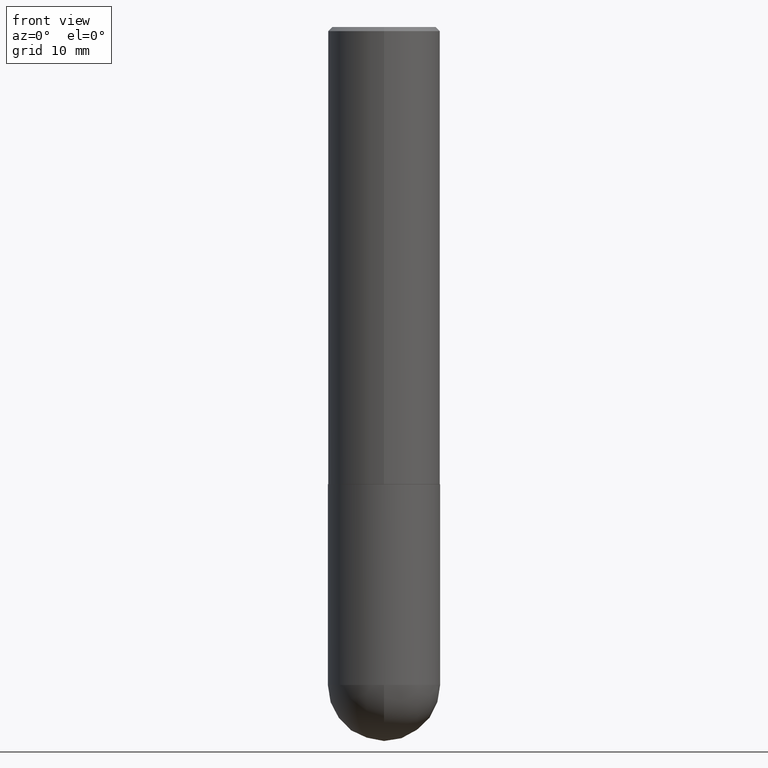
[diagram: clean part render]
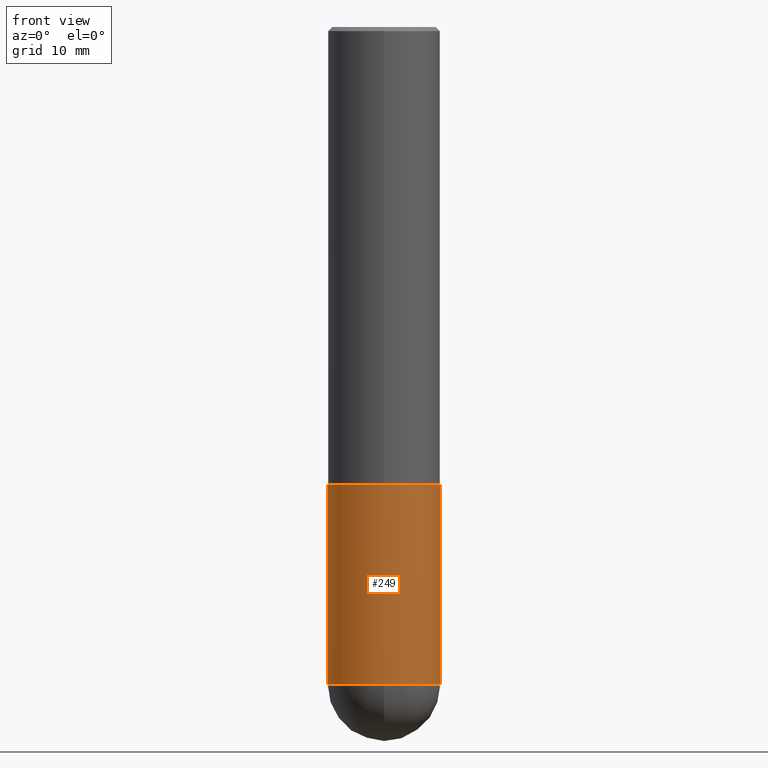
[diagram: same view with one face highlighted and labeled with its STEP entity id]
A machine part, front view. The second image highlights one B-rep face of the part: STEP entity #249.
In plain terms, the highlighted cylindrical surface (partial cylindrical patch) has radius 7.0002 mm, axis along (-0, 0, 1).
Its self-contained STEP definition (entity closure, byte-faithful):
#19 = CARTESIAN_POINT ( 'NONE',  ( 7.894706947007475996E-29, -1.127154920618732565E-14, -3.228299999999999503 ) ) ;
#27 = LINE ( 'NONE', #93, #403 ) ;
#37 = EDGE_CURVE ( 'NONE', #257, #88, #27, .T. ) ;
#39 = CARTESIAN_POINT ( 'NONE',  ( -1.958255779754759675E-15, -0.2756000000000117245, -3.228299999999998615 ) ) ;
#42 = FACE_OUTER_BOUND ( 'NONE', #388, .T. ) ;
#51 = ORIENTED_EDGE ( 'NONE', *, *, #37, .T. ) ;
#52 = VECTOR ( 'NONE', #374, 39.37007874015748143 ) ;
#61 = LINE ( 'NONE', #251, #52 ) ;
#62 = AXIS2_PLACEMENT_3D ( 'NONE', #321, #201, #269 ) ;
#65 = ORIENTED_EDGE ( 'NONE', *, *, #390, .T. ) ;
#66 = VERTEX_POINT ( 'NONE', #317 ) ;
#88 = VERTEX_POINT ( 'NONE', #382 ) ;
#93 = CARTESIAN_POINT ( 'NONE',  ( 0.2756000000000000671, -1.924504513970335743E-15, 1.343874319409360268E-29 ) ) ;
#102 = AXIS2_PLACEMENT_3D ( 'NONE', #19, #270, #296 ) ;
#136 = EDGE_CURVE ( 'NONE', #66, #88, #361, .T. ) ;
#144 = CIRCLE ( 'NONE', #172, 0.2756000000000000671 ) ;
#151 = DIRECTION ( 'NONE',  ( 1.000000000000000000, -6.982962677686265922E-15, 0.000000000000000000 ) ) ;
#152 = EDGE_CURVE ( 'NONE', #378, #66, #61, .T. ) ;
#172 = AXIS2_PLACEMENT_3D ( 'NONE', #255, #345, #325 ) ;
#201 = DIRECTION ( 'NONE',  ( -2.445468806185136597E-29, 3.491481338843145583E-15, 1.000000000000000000 ) ) ;
#234 = CARTESIAN_POINT ( 'NONE',  ( -0.2756000000000000671, -7.595135459587778194E-15, -3.228299999999999503 ) ) ;
#241 = EDGE_CURVE ( 'NONE', #378, #367, #144, .T. ) ;
#249 = ADVANCED_FACE ( 'NONE', ( #42 ), #383, .T. ) ;
#250 = DIRECTION ( 'NONE',  ( -2.445468806185136877E-29, 3.491481338843145188E-15, 1.000000000000000000 ) ) ;
#251 = CARTESIAN_POINT ( 'NONE',  ( -0.2756000000000000671, 1.958255779754836589E-15, -1.355658510874252287E-29 ) ) ;
#252 = CIRCLE ( 'NONE', #102, 0.2756000000000000671 ) ;
#255 = CARTESIAN_POINT ( 'NONE',  ( 7.894706947007475996E-29, -1.127154920618732565E-14, -3.228299999999999503 ) ) ;
#257 = VERTEX_POINT ( 'NONE', #275 ) ;
#269 = DIRECTION ( 'NONE',  ( 1.000000000000000000, -6.982962677686267499E-15, 4.876176775795935793E-29 ) ) ;
#270 = DIRECTION ( 'NONE',  ( -2.445468806185136597E-29, 3.491481338843145583E-15, 1.000000000000000000 ) ) ;
#275 = CARTESIAN_POINT ( 'NONE',  ( 0.2756000000000000671, -1.147789575331294974E-14, -3.228299999999999503 ) ) ;
#296 = DIRECTION ( 'NONE',  ( 1.000000000000000000, -6.982962677686264344E-15, 0.000000000000000000 ) ) ;
#307 = DIRECTION ( 'NONE',  ( -2.445468806185136597E-29, 3.491481338843145583E-15, 1.000000000000000000 ) ) ;
#317 = CARTESIAN_POINT ( 'NONE',  ( -0.2756000000000000116, -7.595135459587776616E-15, -2.244099999999999540 ) ) ;
#321 = CARTESIAN_POINT ( 'NONE',  ( 0.000000000000000000, 0.000000000000000000, 0.000000000000000000 ) ) ;
#325 = DIRECTION ( 'NONE',  ( 1.000000000000000000, -6.982962677686264344E-15, 0.000000000000000000 ) ) ;
#326 = AXIS2_PLACEMENT_3D ( 'NONE', #338, #307, #151 ) ;
#335 = ORIENTED_EDGE ( 'NONE', *, *, #136, .F. ) ;
#338 = CARTESIAN_POINT ( 'NONE',  ( 5.487876547960063631E-29, -7.835233272497900762E-15, -2.244099999999999540 ) ) ;
#345 = DIRECTION ( 'NONE',  ( -2.445468806185136597E-29, 3.491481338843145583E-15, 1.000000000000000000 ) ) ;
#361 = CIRCLE ( 'NONE', #326, 0.2756000000000000116 ) ;
#363 = ORIENTED_EDGE ( 'NONE', *, *, #241, .T. ) ;
#367 = VERTEX_POINT ( 'NONE', #39 ) ;
#374 = DIRECTION ( 'NONE',  ( -2.445468806185136877E-29, 3.491481338843145188E-15, 1.000000000000000000 ) ) ;
#378 = VERTEX_POINT ( 'NONE', #234 ) ;
#382 = CARTESIAN_POINT ( 'NONE',  ( 0.2756000000000000116, -9.759737786468235716E-15, -2.244099999999999540 ) ) ;
#383 = CYLINDRICAL_SURFACE ( 'NONE', #62, 0.2756000000000000671 ) ;
#388 = EDGE_LOOP ( 'NONE', ( #398, #363, #65, #51, #335 ) ) ;
#390 = EDGE_CURVE ( 'NONE', #367, #257, #252, .T. ) ;
#398 = ORIENTED_EDGE ( 'NONE', *, *, #152, .F. ) ;
#403 = VECTOR ( 'NONE', #250, 39.37007874015748143 ) ;